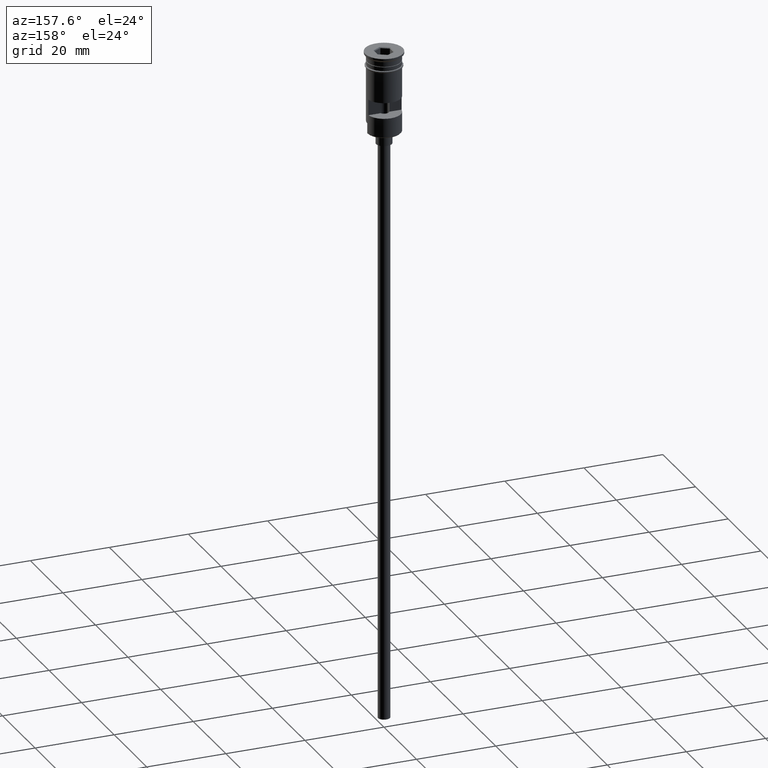
[diagram: clean part render]
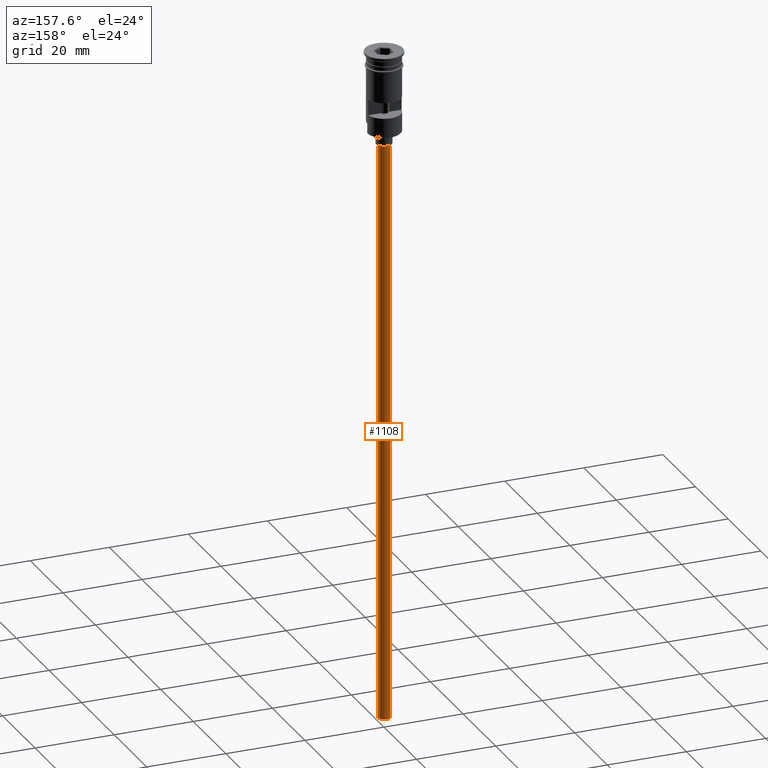
[diagram: same view with one face highlighted and labeled with its STEP entity id]
A machine part, auxiliary view. The second image highlights one B-rep face of the part: STEP entity #1108.
In plain terms, the highlighted cylindrical surface (edge-blend (fillet) strip) has radius 1.5 mm, axis along (-0, -0, 1).
Its self-contained STEP definition (entity closure, byte-faithful):
#6 = LINE ( 'NONE', #1227, #1577 ) ;
#62 = CARTESIAN_POINT ( 'NONE',  ( -1.500000000000000222, 1.836970198721030181E-16, -170.4999999999999716 ) ) ;
#242 = VERTEX_POINT ( 'NONE', #1520 ) ;
#269 = FACE_OUTER_BOUND ( 'NONE', #1115, .T. ) ;
#320 = AXIS2_PLACEMENT_3D ( 'NONE', #769, #1238, #370 ) ;
#370 = DIRECTION ( 'NONE',  ( 1.000000000000000000, 0.000000000000000000, 0.000000000000000000 ) ) ;
#384 = CYLINDRICAL_SURFACE ( 'NONE', #320, 1.500000000000000222 ) ;
#410 = VERTEX_POINT ( 'NONE', #926 ) ;
#416 = CARTESIAN_POINT ( 'NONE',  ( 0.000000000000000000, 0.000000000000000000, -23.49999999999999645 ) ) ;
#442 = AXIS2_PLACEMENT_3D ( 'NONE', #1372, #1507, #1365 ) ;
#540 = ORIENTED_EDGE ( 'NONE', *, *, #1565, .T. ) ;
#684 = AXIS2_PLACEMENT_3D ( 'NONE', #416, #1010, #1410 ) ;
#701 = LINE ( 'NONE', #1204, #1261 ) ;
#720 = EDGE_CURVE ( 'NONE', #1217, #410, #731, .T. ) ;
#731 = CIRCLE ( 'NONE', #442, 1.500000000000000222 ) ;
#769 = CARTESIAN_POINT ( 'NONE',  ( 0.000000000000000000, 0.000000000000000000, -170.4999999999999716 ) ) ;
#819 = ORIENTED_EDGE ( 'NONE', *, *, #720, .F. ) ;
#869 = DIRECTION ( 'NONE',  ( -0.000000000000000000, -0.000000000000000000, 1.000000000000000000 ) ) ;
#886 = VERTEX_POINT ( 'NONE', #1534 ) ;
#926 = CARTESIAN_POINT ( 'NONE',  ( 1.500000000000000222, 0.000000000000000000, -170.4999999999999716 ) ) ;
#955 = DIRECTION ( 'NONE',  ( -0.000000000000000000, -0.000000000000000000, 1.000000000000000000 ) ) ;
#1010 = DIRECTION ( 'NONE',  ( 0.000000000000000000, 0.000000000000000000, -1.000000000000000000 ) ) ;
#1108 = ADVANCED_FACE ( 'NONE', ( #269 ), #384, .T. ) ;
#1115 = EDGE_LOOP ( 'NONE', ( #819, #540, #1494, #1139 ) ) ;
#1139 = ORIENTED_EDGE ( 'NONE', *, *, #1444, .F. ) ;
#1195 = EDGE_CURVE ( 'NONE', #242, #886, #1339, .T. ) ;
#1204 = CARTESIAN_POINT ( 'NONE',  ( 1.500000000000000222, 0.000000000000000000, -170.4999999999999716 ) ) ;
#1217 = VERTEX_POINT ( 'NONE', #62 ) ;
#1227 = CARTESIAN_POINT ( 'NONE',  ( -1.500000000000000222, 1.836970198721030181E-16, -170.4999999999999716 ) ) ;
#1238 = DIRECTION ( 'NONE',  ( -0.000000000000000000, -0.000000000000000000, 1.000000000000000000 ) ) ;
#1261 = VECTOR ( 'NONE', #955, 1000.000000000000000 ) ;
#1339 = CIRCLE ( 'NONE', #684, 1.500000000000000222 ) ;
#1365 = DIRECTION ( 'NONE',  ( -1.000000000000000000, 0.000000000000000000, 0.000000000000000000 ) ) ;
#1372 = CARTESIAN_POINT ( 'NONE',  ( 0.000000000000000000, 0.000000000000000000, -170.4999999999999716 ) ) ;
#1410 = DIRECTION ( 'NONE',  ( -1.000000000000000000, 0.000000000000000000, 0.000000000000000000 ) ) ;
#1444 = EDGE_CURVE ( 'NONE', #410, #886, #701, .T. ) ;
#1494 = ORIENTED_EDGE ( 'NONE', *, *, #1195, .T. ) ;
#1507 = DIRECTION ( 'NONE',  ( 0.000000000000000000, 0.000000000000000000, -1.000000000000000000 ) ) ;
#1520 = CARTESIAN_POINT ( 'NONE',  ( -1.500000000000000222, 1.836970198721030181E-16, -23.49999999999999645 ) ) ;
#1534 = CARTESIAN_POINT ( 'NONE',  ( 1.500000000000000222, 0.000000000000000000, -23.49999999999999645 ) ) ;
#1565 = EDGE_CURVE ( 'NONE', #1217, #242, #6, .T. ) ;
#1577 = VECTOR ( 'NONE', #869, 1000.000000000000000 ) ;